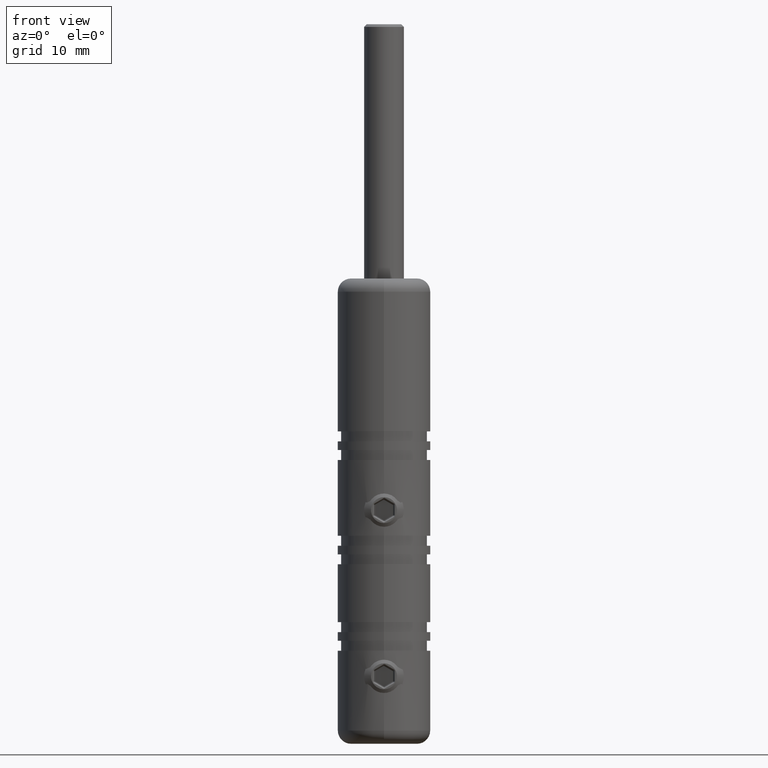
[diagram: clean part render]
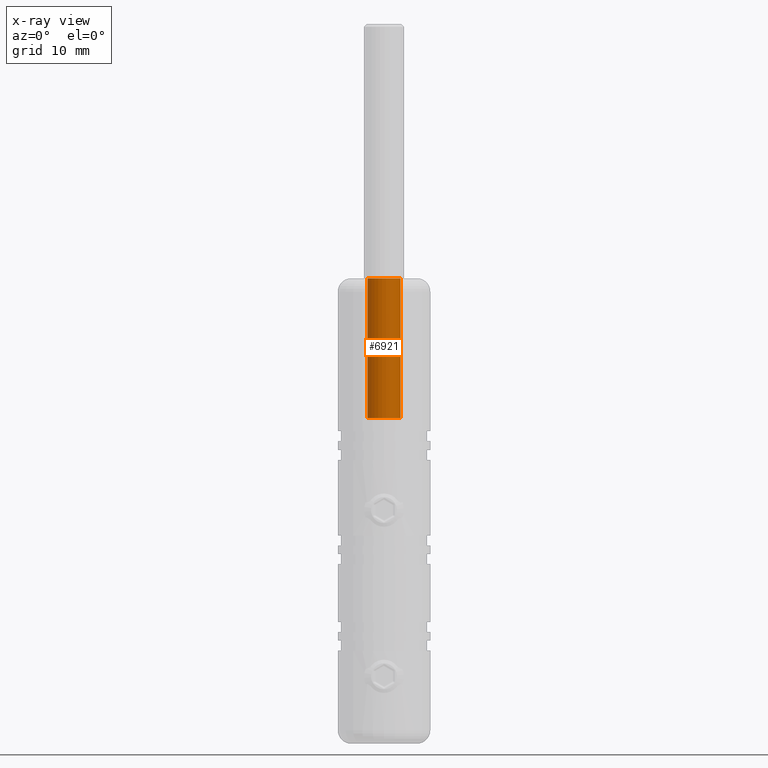
[diagram: x-ray — body ghosted, one internal face saturated and labeled with its STEP entity id]
A machine part, front view, then the same camera in x-ray: the body is ghosted and one INTERNAL B-rep face — a face not visible from any outside direction — is saturated and labeled: STEP entity #6921.
In plain terms, the highlighted cylindrical surface (edge-blend (fillet) strip) has radius 2.5 mm, axis along (0, 0, 1).
Its self-contained STEP definition (entity closure, byte-faithful):
#247 = AXIS2_PLACEMENT_3D ( 'NONE', #12971, #3991, #14433 ) ;
#952 = ORIENTED_EDGE ( 'NONE', *, *, #6576, .T. ) ;
#1008 = CARTESIAN_POINT ( 'NONE',  ( 2.499999999999995600, 3.932449546531767800E-015, 14.00000000000000200 ) ) ;
#1394 = ORIENTED_EDGE ( 'NONE', *, *, #1516, .T. ) ;
#1516 = EDGE_CURVE ( 'NONE', #6331, #1993, #5725, .T. ) ;
#1993 = VERTEX_POINT ( 'NONE', #3435 ) ;
#3210 = DIRECTION ( 'NONE',  ( 1.000000000000000000, 0.0000000000000000000, 0.0000000000000000000 ) ) ;
#3435 = CARTESIAN_POINT ( 'NONE',  ( -2.499999999999998200, 4.238611246318604900E-015, 35.00000000000000000 ) ) ;
#3991 = DIRECTION ( 'NONE',  ( -0.0000000000000000000, -0.0000000000000000000, 1.000000000000000000 ) ) ;
#4035 = DIRECTION ( 'NONE',  ( 1.000000000000000000, 0.0000000000000000000, 0.0000000000000000000 ) ) ;
#4198 = EDGE_LOOP ( 'NONE', ( #10890, #1394, #952, #5472 ) ) ;
#4889 = VERTEX_POINT ( 'NONE', #8557 ) ;
#5472 = ORIENTED_EDGE ( 'NONE', *, *, #5865, .F. ) ;
#5488 = DIRECTION ( 'NONE',  ( -0.0000000000000000000, -0.0000000000000000000, 1.000000000000000000 ) ) ;
#5599 = DIRECTION ( 'NONE',  ( -0.0000000000000000000, -0.0000000000000000000, 1.000000000000000000 ) ) ;
#5725 = LINE ( 'NONE', #12889, #11006 ) ;
#5865 = EDGE_CURVE ( 'NONE', #12416, #4889, #5981, .T. ) ;
#5981 = LINE ( 'NONE', #8317, #6755 ) ;
#6215 = DIRECTION ( 'NONE',  ( -0.0000000000000000000, -0.0000000000000000000, 1.000000000000000000 ) ) ;
#6331 = VERTEX_POINT ( 'NONE', #6549 ) ;
#6549 = CARTESIAN_POINT ( 'NONE',  ( -2.499999999999995600, 4.238611246318604900E-015, 14.00000000000000200 ) ) ;
#6560 = AXIS2_PLACEMENT_3D ( 'NONE', #7243, #7137, #3210 ) ;
#6576 = EDGE_CURVE ( 'NONE', #1993, #4889, #11019, .T. ) ;
#6755 = VECTOR ( 'NONE', #5599, 1000.000000000000000 ) ;
#6921 = ADVANCED_FACE ( 'NONE', ( #11857 ), #10000, .F. ) ;
#7137 = DIRECTION ( 'NONE',  ( -0.0000000000000000000, -0.0000000000000000000, 1.000000000000000000 ) ) ;
#7243 = CARTESIAN_POINT ( 'NONE',  ( 0.0000000000000000000, 3.932449546531767800E-015, 35.00000000000000000 ) ) ;
#7663 = AXIS2_PLACEMENT_3D ( 'NONE', #8023, #5488, #4035 ) ;
#8023 = CARTESIAN_POINT ( 'NONE',  ( 0.0000000000000000000, 3.932449546531767800E-015, 14.00000000000000200 ) ) ;
#8317 = CARTESIAN_POINT ( 'NONE',  ( 2.499999999999996900, 3.932449546531767800E-015, 35.00000000000000000 ) ) ;
#8557 = CARTESIAN_POINT ( 'NONE',  ( 2.499999999999997800, 3.932449546531767800E-015, 35.00000000000000000 ) ) ;
#10000 = CYLINDRICAL_SURFACE ( 'NONE', #6560, 2.499999999999996900 ) ;
#10890 = ORIENTED_EDGE ( 'NONE', *, *, #12600, .F. ) ;
#11006 = VECTOR ( 'NONE', #6215, 1000.000000000000000 ) ;
#11019 = CIRCLE ( 'NONE', #247, 2.499999999999997800 ) ;
#11857 = FACE_OUTER_BOUND ( 'NONE', #4198, .T. ) ;
#12260 = CIRCLE ( 'NONE', #7663, 2.499999999999995600 ) ;
#12416 = VERTEX_POINT ( 'NONE', #1008 ) ;
#12600 = EDGE_CURVE ( 'NONE', #6331, #12416, #12260, .T. ) ;
#12889 = CARTESIAN_POINT ( 'NONE',  ( -2.499999999999996900, 4.238611246318604900E-015, 35.00000000000000000 ) ) ;
#12971 = CARTESIAN_POINT ( 'NONE',  ( 0.0000000000000000000, 3.932449546531767800E-015, 35.00000000000000000 ) ) ;
#14433 = DIRECTION ( 'NONE',  ( 1.000000000000000000, 0.0000000000000000000, 0.0000000000000000000 ) ) ;